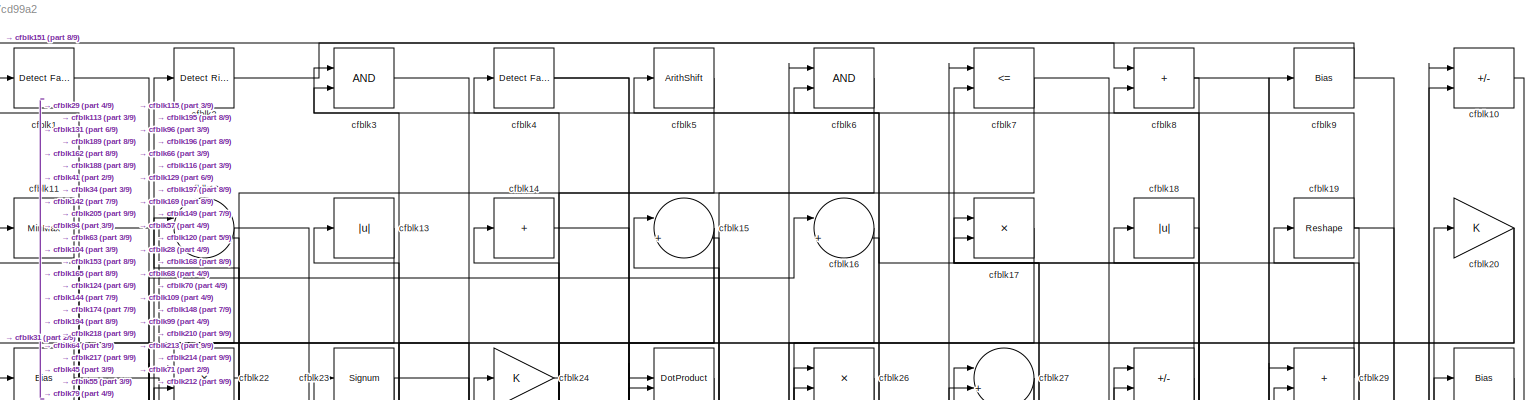
[diagram: root canvas - part 1/9, full width, top band]
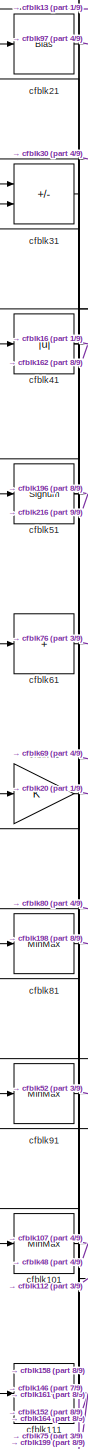
[diagram: root canvas - part 2/9, top left region]
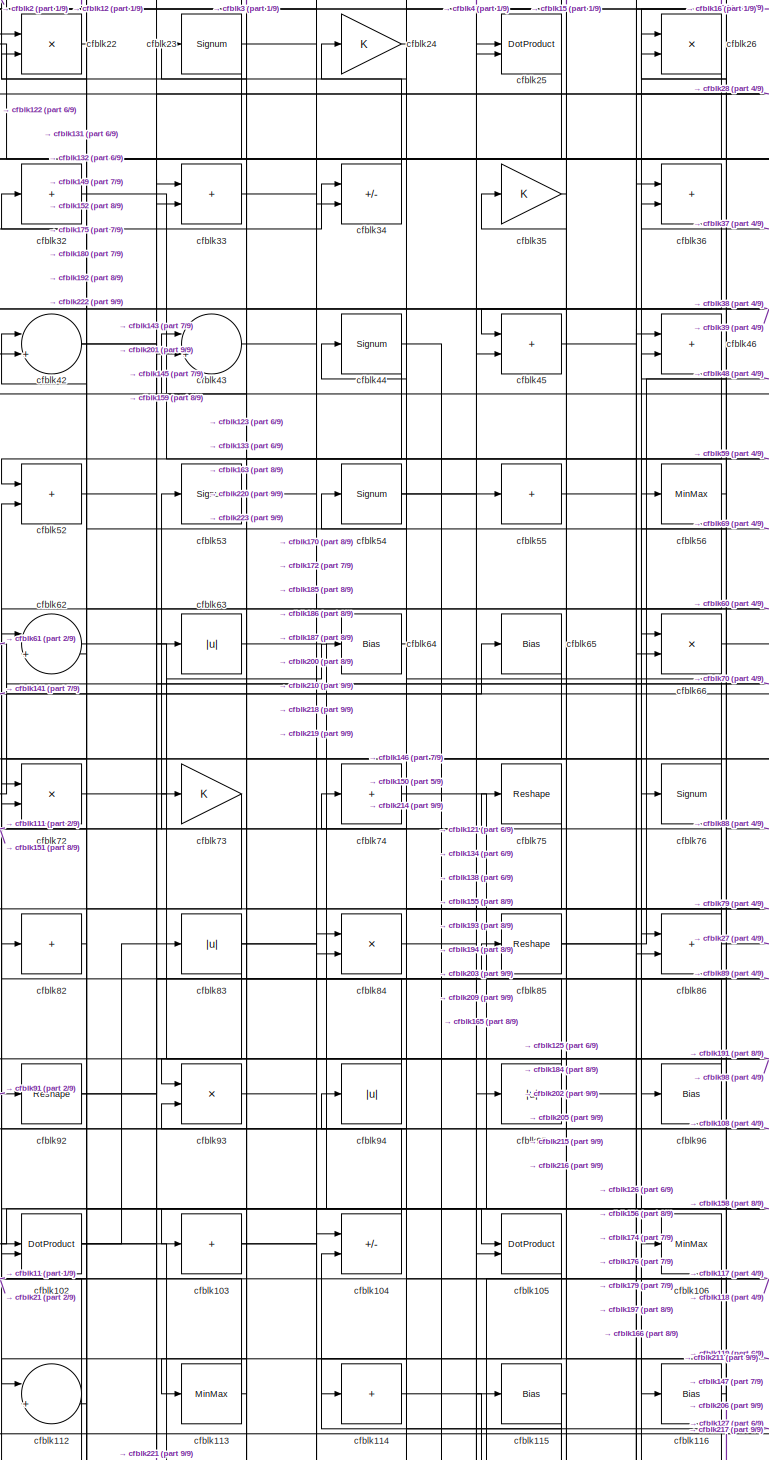
[diagram: root canvas - part 3/9, top center region]
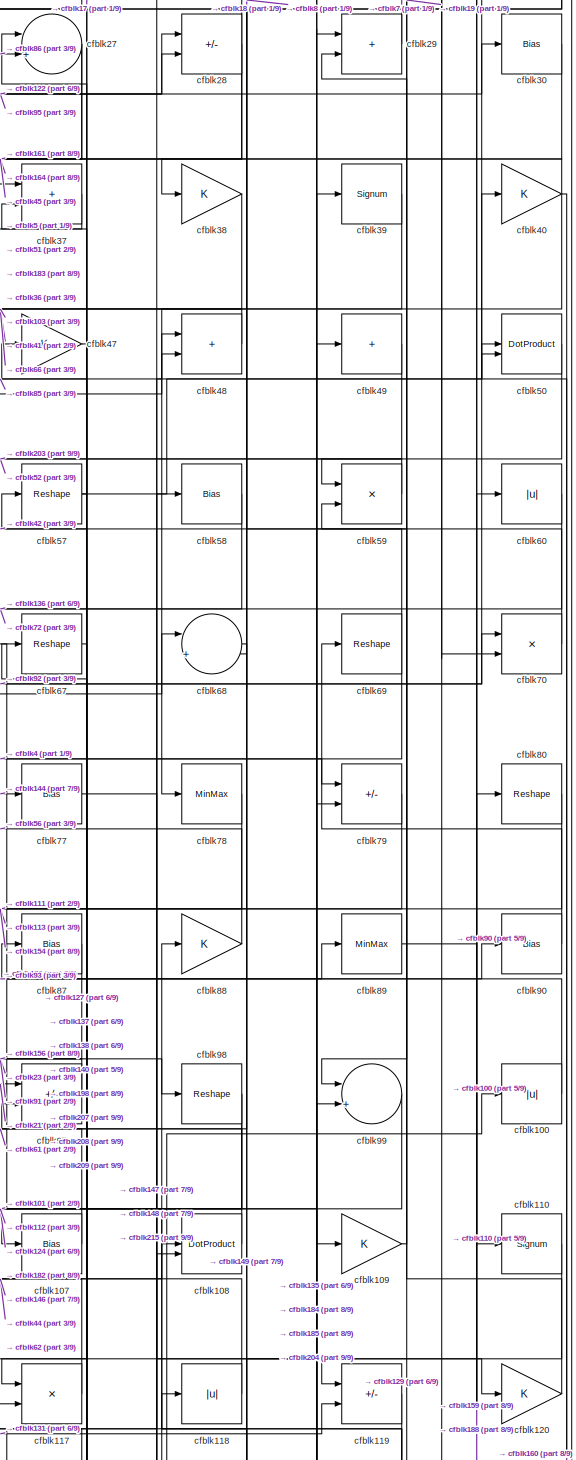
[diagram: root canvas - part 4/9, top right region]
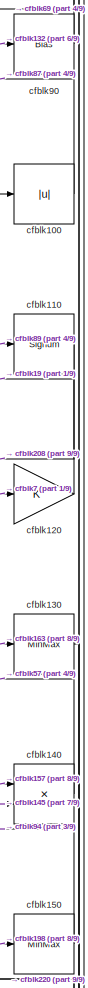
[diagram: root canvas - part 5/9, middle right region]
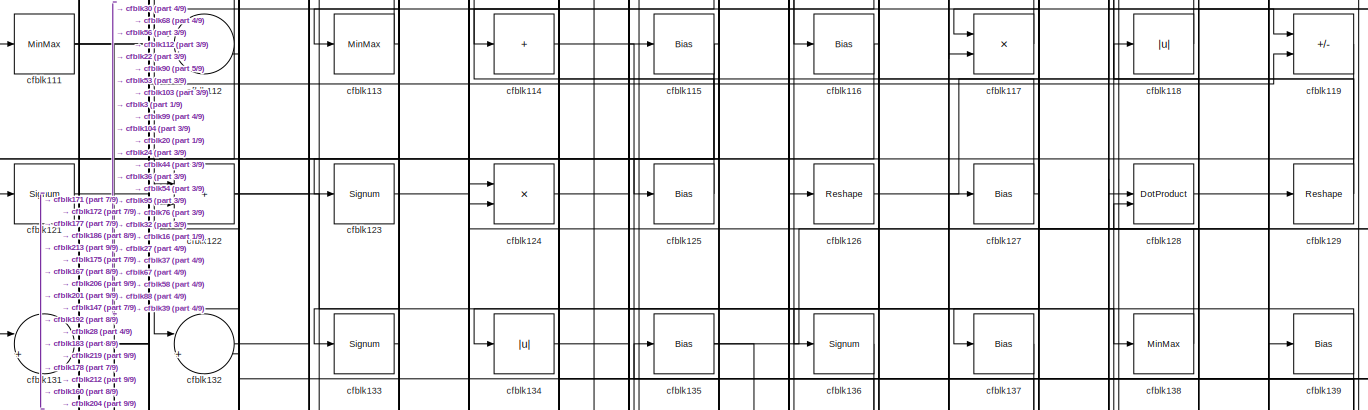
[diagram: root canvas - part 6/9, full width, middle band]
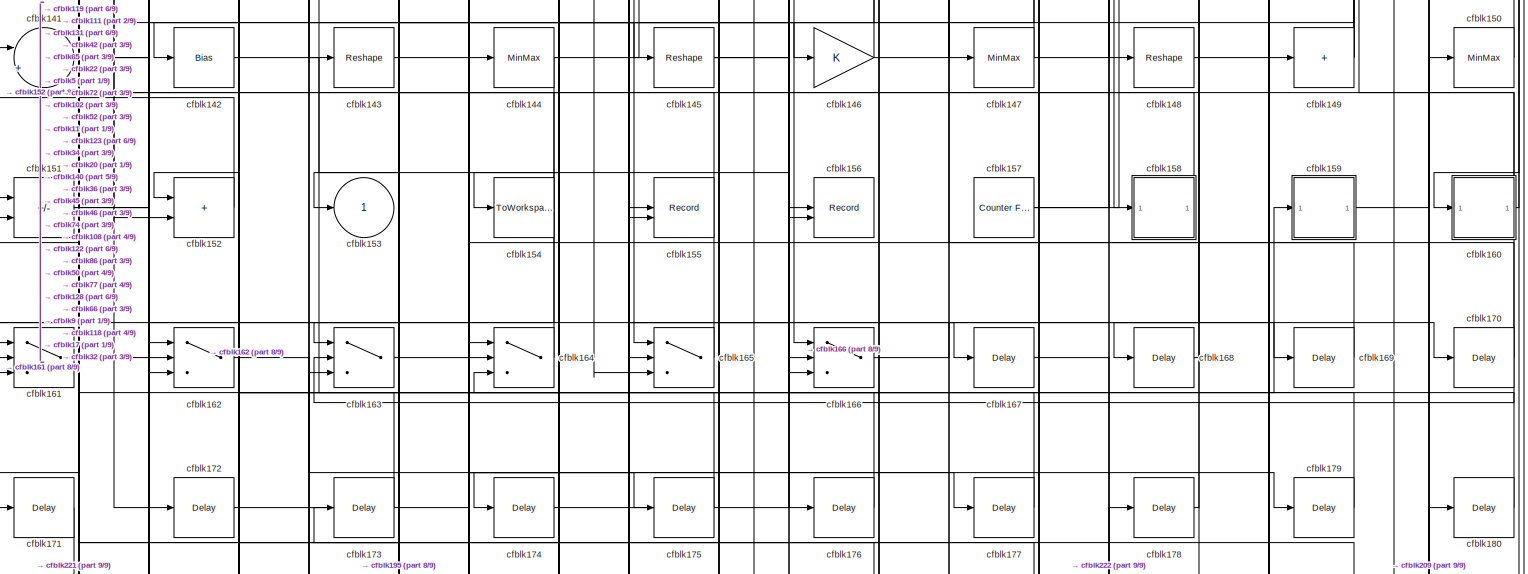
[diagram: root canvas - part 7/9, full width, bottom band]
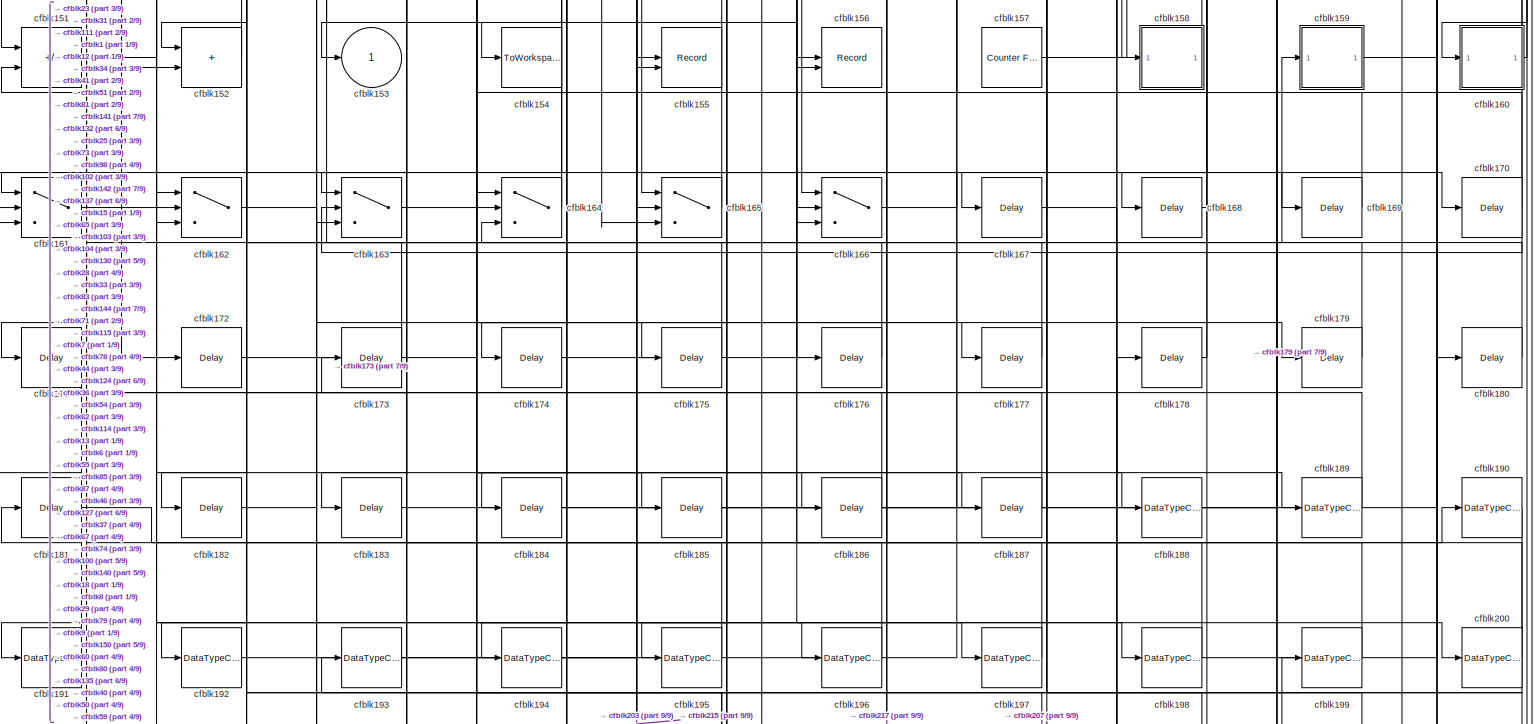
[diagram: root canvas - part 8/9, full width, bottom band]
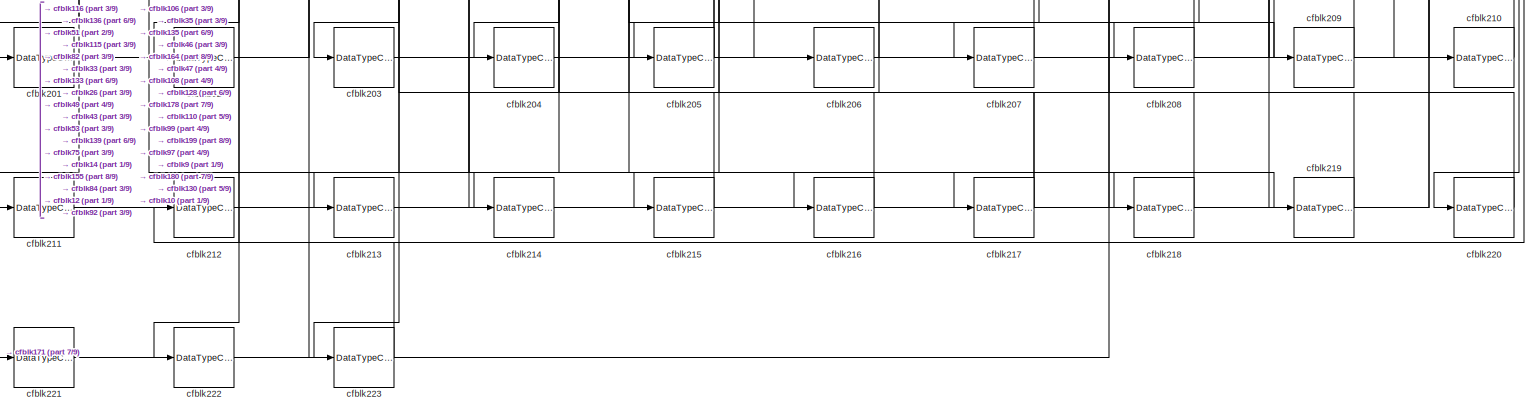
[diagram: root canvas - part 9/9, full width, bottom band]
MODEL slx_30b8d7cd99a2
KIND model
CONFIG AbsTol = auto
CONFIG EnableMultiTasking = off
CONFIG FixedStep = auto
CONFIG MaxStep = auto
CONFIG MinStep = auto
CONFIG RelTol = 1e-3
CONFIG SampleTimeConstraint = Unconstrained
CONFIG SolverName = VariableStepAuto
CONFIG StartTime = 0.0
CONFIG StopTime = 10.0
BLOCK [Reference] cfblk1  REF=hdlsllib/Logic and Bit
Operations/Detect Fall
Nonpositive
  SourceBlock = hdlsllib/Logic and Bit\nOperations/Detect Fall\nNonpositive
  SourceType = Detect Fall Nonpositive
BLOCK [Sum] cfblk10
  IconShape = rectangular
  Inputs = +-
BLOCK [Abs] cfblk100
  SaturateOnIntegerOverflow = off
BLOCK [MinMax] cfblk101
BLOCK [DotProduct] cfblk102
  OutDataTypeStr = Inherit: Inherit via internal rule
BLOCK [Sum] cfblk103
  IconShape = rectangular
  Inputs = +
BLOCK [Sum] cfblk104
  IconShape = rectangular
  Inputs = +-
BLOCK [DotProduct] cfblk105
  OutDataTypeStr = Inherit: Inherit via internal rule
BLOCK [MinMax] cfblk106
BLOCK [Bias] cfblk107
  Bias = 0.0
  SaturateOnIntegerOverflow = off
BLOCK [DotProduct] cfblk108
  OutDataTypeStr = Inherit: Inherit via internal rule
BLOCK [Gain] cfblk109
BLOCK [MinMax] cfblk11
BLOCK [Signum] cfblk110
BLOCK [MinMax] cfblk111
BLOCK [Sum] cfblk112
  Inputs = |++
BLOCK [MinMax] cfblk113
BLOCK [Sum] cfblk114
  IconShape = rectangular
  Inputs = +
BLOCK [Bias] cfblk115
  Bias = 0.0
  SaturateOnIntegerOverflow = off
BLOCK [Bias] cfblk116
  Bias = 0.0
  SaturateOnIntegerOverflow = off
BLOCK [Product] cfblk117
  Inputs = */
  RndMeth = Zero
  SaturateOnIntegerOverflow = on
BLOCK [Abs] cfblk118
  SaturateOnIntegerOverflow = off
BLOCK [Sum] cfblk119
  IconShape = rectangular
  Inputs = +-
BLOCK [Sum] cfblk12
  Inputs = |++
BLOCK [Gain] cfblk120
BLOCK [Signum] cfblk121
BLOCK [Sum] cfblk122
  IconShape = rectangular
BLOCK [Signum] cfblk123
BLOCK [Product] cfblk124
  Inputs = */
  RndMeth = Zero
  SaturateOnIntegerOverflow = on
BLOCK [Bias] cfblk125
  Bias = 0.0
  SaturateOnIntegerOverflow = off
BLOCK [Reshape] cfblk126
BLOCK [Bias] cfblk127
  Bias = 0.0
  SaturateOnIntegerOverflow = off
BLOCK [DotProduct] cfblk128
  OutDataTypeStr = Inherit: Inherit via internal rule
BLOCK [Reshape] cfblk129
BLOCK [Abs] cfblk13
  SaturateOnIntegerOverflow = off
BLOCK [MinMax] cfblk130
BLOCK [Sum] cfblk131
  Inputs = |++
BLOCK [Sum] cfblk132
  Inputs = |++
BLOCK [Signum] cfblk133
BLOCK [Abs] cfblk134
  SaturateOnIntegerOverflow = off
BLOCK [Bias] cfblk135
  Bias = 0.0
  SaturateOnIntegerOverflow = off
BLOCK [Signum] cfblk136
BLOCK [Bias] cfblk137
  Bias = 0.0
  SaturateOnIntegerOverflow = off
BLOCK [MinMax] cfblk138
BLOCK [Bias] cfblk139
  Bias = 0.0
  SaturateOnIntegerOverflow = off
BLOCK [Sum] cfblk14
  IconShape = rectangular
  Inputs = +
BLOCK [Product] cfblk140
  Inputs = */
  RndMeth = Zero
  SaturateOnIntegerOverflow = on
BLOCK [Sum] cfblk141
  Inputs = |++
BLOCK [Bias] cfblk142
  Bias = 0.0
  SaturateOnIntegerOverflow = off
BLOCK [Reshape] cfblk143
BLOCK [MinMax] cfblk144
BLOCK [Reshape] cfblk145
BLOCK [Gain] cfblk146
BLOCK [MinMax] cfblk147
BLOCK [Reshape] cfblk148
BLOCK [Sum] cfblk149
  IconShape = rectangular
  Inputs = +
BLOCK [Sum] cfblk15
  Inputs = |++
BLOCK [MinMax] cfblk150
BLOCK [Sum] cfblk151
  IconShape = rectangular
  Inputs = +-
BLOCK [Sum] cfblk152
  IconShape = rectangular
BLOCK [Outport] cfblk153
  VectorParamsAs1DForOutWhenUnconnected = off
BLOCK [ToWorkspace] cfblk154
  MaxDataPoints = inf
  SampleTime = -1
  SaveFormat = Timeseries
  VariableName = simout
BLOCK [Record] cfblk155
  CompatibilityTag = XY
  FileSettingsInternal = {"entries":[{"content":{"excelSettings":{"content":{},"type":"Streamout.ExcelSettings"}},"type":"Streamout.FileSettingStorage","uuid":""}],"packageUris":["http:\/\/schema.mathworks.com\/mf0\/streamout_blocks\/R2020a"],"version":"1.0"}
  Layout = [1 1]
  SignalsInternal = {"entries":[{"content":{"signals":[{"content":{"blockPath":[],"dimensions":[1],"domain":"","lineColor":"#a2142f","plots":[1],"port":1,"signalID":1573,"signalName":"XY Graph:1"},"type":"RecordBlkView.Signal","uuid":""},{"content":{"blockPath":[],"dimensions":[1],"domain":"","lineColor":"#139fff","plots":[1],"port":2,"signalID":1576,"signalName":"XY Graph:2"},"type":"RecordBlkView.Signal","uuid":""}...<+146ch>
  VisualizationBindings = {"xyplotplugin":{"info":[{"series":[{"bindingParametersList":[{"parameter":"X-Axis","signalID":1573,"signalName":"XY Graph:1"},{"parameter":"Y-Axis","signalID":1576,"signalName":"XY Graph:2"}],"seriesID":20089}],"subplotID":1}]}}
  st = -1
BLOCK [Record] cfblk156
  CompatibilityTag = XY
  FileSettingsInternal = {"entries":[{"content":{"excelSettings":{"content":{},"type":"Streamout.ExcelSettings"}},"type":"Streamout.FileSettingStorage","uuid":""}],"packageUris":["http:\/\/schema.mathworks.com\/mf0\/streamout_blocks\/R2020a"],"version":"1.0"}
  Layout = [1 1]
  SignalsInternal = {"entries":[{"content":{"signals":[{"content":{"blockPath":[],"dimensions":[1],"domain":"","lineColor":"#a2142f","plots":[1],"port":1,"signalID":1581,"signalName":"XY Graph:1"},"type":"RecordBlkView.Signal","uuid":""},{"content":{"blockPath":[],"dimensions":[1],"domain":"","lineColor":"#139fff","plots":[1],"port":2,"signalID":1584,"signalName":"XY Graph:2"},"type":"RecordBlkView.Signal","uuid":""}...<+146ch>
  VisualizationBindings = {"xyplotplugin":{"info":[{"series":[{"bindingParametersList":[{"parameter":"X-Axis","signalID":1581,"signalName":"XY Graph:1"},{"parameter":"Y-Axis","signalID":1584,"signalName":"XY Graph:2"}],"seriesID":3946}],"subplotID":1}]}}
  st = -1
BLOCK [Reference] cfblk157  REF=hdlsllib/Sources/Counter
Free-Running
  SourceBlock = hdlsllib/Sources/Counter\nFree-Running
  SourceType = Counter Free-Running
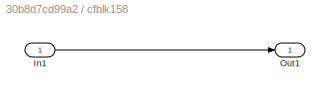
BLOCK [SubSystem] cfblk158
  LibrarySourceBlock = hdlsllib/Ports &\nSubsystems/Subsystem
BLOCK [Inport] cfblk158/In1
BLOCK [Outport] cfblk158/Out1
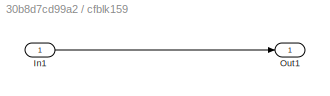
BLOCK [SubSystem] cfblk159
  LibrarySourceBlock = hdlsllib/Ports &\nSubsystems/Subsystem
BLOCK [Inport] cfblk159/In1
BLOCK [Outport] cfblk159/Out1
BLOCK [Sum] cfblk16
  Inputs = |++
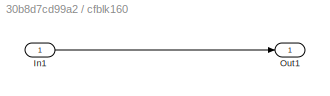
BLOCK [SubSystem] cfblk160
  LibrarySourceBlock = hdlsllib/Ports &\nSubsystems/Subsystem
BLOCK [Inport] cfblk160/In1
BLOCK [Outport] cfblk160/Out1
BLOCK [Switch] cfblk161
  InputSameDT = off
  SaturateOnIntegerOverflow = off
BLOCK [Switch] cfblk162
  InputSameDT = off
  SaturateOnIntegerOverflow = off
BLOCK [Switch] cfblk163
  InputSameDT = off
  SaturateOnIntegerOverflow = off
BLOCK [Switch] cfblk164
  InputSameDT = off
  SaturateOnIntegerOverflow = off
BLOCK [Switch] cfblk165
  InputSameDT = off
  SaturateOnIntegerOverflow = off
BLOCK [Switch] cfblk166
  InputSameDT = off
  SaturateOnIntegerOverflow = off
BLOCK [Delay] cfblk167
  InputPortMap = u0
  SampleTime = 1
BLOCK [Delay] cfblk168
  InputPortMap = u0
  SampleTime = 1
BLOCK [Delay] cfblk169
  InputPortMap = u0
  SampleTime = 1
BLOCK [Product] cfblk17
  Inputs = */
  RndMeth = Zero
  SaturateOnIntegerOverflow = on
BLOCK [Delay] cfblk170
  InputPortMap = u0
  SampleTime = 1
BLOCK [Delay] cfblk171
  InputPortMap = u0
  SampleTime = 1
BLOCK [Delay] cfblk172
  InputPortMap = u0
  SampleTime = 1
BLOCK [Delay] cfblk173
  InputPortMap = u0
  SampleTime = 1
BLOCK [Delay] cfblk174
  InputPortMap = u0
  SampleTime = 1
BLOCK [Delay] cfblk175
  InputPortMap = u0
  SampleTime = 1
BLOCK [Delay] cfblk176
  InputPortMap = u0
  SampleTime = 1
BLOCK [Delay] cfblk177
  InputPortMap = u0
  SampleTime = 1
BLOCK [Delay] cfblk178
  InputPortMap = u0
  SampleTime = 1
BLOCK [Delay] cfblk179
  InputPortMap = u0
  SampleTime = 1
BLOCK [Abs] cfblk18
  SaturateOnIntegerOverflow = off
BLOCK [Delay] cfblk180
  InputPortMap = u0
  SampleTime = 1
BLOCK [Delay] cfblk181
  InputPortMap = u0
  SampleTime = 1
BLOCK [Delay] cfblk182
  InputPortMap = u0
  SampleTime = 1
BLOCK [Delay] cfblk183
  InputPortMap = u0
  SampleTime = 1
BLOCK [Delay] cfblk184
  InputPortMap = u0
  SampleTime = 1
BLOCK [Delay] cfblk185
  InputPortMap = u0
  SampleTime = 1
BLOCK [Delay] cfblk186
  InputPortMap = u0
  SampleTime = 1
BLOCK [Delay] cfblk187
  InputPortMap = u0
  SampleTime = 1
BLOCK [DataTypeConversion] cfblk188
  OutDataTypeStr = uint8
  RndMeth = Floor
  SaturateOnIntegerOverflow = off
BLOCK [DataTypeConversion] cfblk189
  OutDataTypeStr = uint8
  RndMeth = Floor
  SaturateOnIntegerOverflow = off
BLOCK [Reshape] cfblk19
BLOCK [DataTypeConversion] cfblk190
  OutDataTypeStr = uint8
  RndMeth = Floor
  SaturateOnIntegerOverflow = off
BLOCK [DataTypeConversion] cfblk191
  OutDataTypeStr = uint8
  RndMeth = Floor
  SaturateOnIntegerOverflow = off
BLOCK [DataTypeConversion] cfblk192
  OutDataTypeStr = uint8
  RndMeth = Floor
  SaturateOnIntegerOverflow = off
BLOCK [DataTypeConversion] cfblk193
  OutDataTypeStr = uint8
  RndMeth = Floor
  SaturateOnIntegerOverflow = off
BLOCK [DataTypeConversion] cfblk194
  OutDataTypeStr = uint8
  RndMeth = Floor
  SaturateOnIntegerOverflow = off
BLOCK [DataTypeConversion] cfblk195
  OutDataTypeStr = uint8
  RndMeth = Floor
  SaturateOnIntegerOverflow = off
BLOCK [DataTypeConversion] cfblk196
  OutDataTypeStr = uint8
  RndMeth = Floor
  SaturateOnIntegerOverflow = off
BLOCK [DataTypeConversion] cfblk197
  OutDataTypeStr = uint8
  RndMeth = Floor
  SaturateOnIntegerOverflow = off
BLOCK [DataTypeConversion] cfblk198
  RndMeth = Floor
  SaturateOnIntegerOverflow = off
BLOCK [DataTypeConversion] cfblk199
  OutDataTypeStr = uint8
  RndMeth = Floor
  SaturateOnIntegerOverflow = off
BLOCK [Reference] cfblk2  REF=hdlsllib/Logic and Bit
Operations/Detect Rise
Nonnegative
  SourceBlock = hdlsllib/Logic and Bit\nOperations/Detect Rise\nNonnegative
  SourceType = Detect Rise Nonnegative
BLOCK [Gain] cfblk20
BLOCK [DataTypeConversion] cfblk200
  OutDataTypeStr = uint8
  RndMeth = Floor
  SaturateOnIntegerOverflow = off
BLOCK [DataTypeConversion] cfblk201
  OutDataTypeStr = uint8
  RndMeth = Floor
  SaturateOnIntegerOverflow = off
BLOCK [DataTypeConversion] cfblk202
  OutDataTypeStr = uint8
  RndMeth = Floor
  SaturateOnIntegerOverflow = off
BLOCK [DataTypeConversion] cfblk203
  RndMeth = Floor
  SaturateOnIntegerOverflow = off
BLOCK [DataTypeConversion] cfblk204
  OutDataTypeStr = uint8
  RndMeth = Floor
  SaturateOnIntegerOverflow = off
BLOCK [DataTypeConversion] cfblk205
  RndMeth = Floor
  SaturateOnIntegerOverflow = off
BLOCK [DataTypeConversion] cfblk206
  OutDataTypeStr = uint8
  RndMeth = Floor
  SaturateOnIntegerOverflow = off
BLOCK [DataTypeConversion] cfblk207
  RndMeth = Floor
  SaturateOnIntegerOverflow = off
BLOCK [DataTypeConversion] cfblk208
  OutDataTypeStr = uint8
  RndMeth = Floor
  SaturateOnIntegerOverflow = off
BLOCK [DataTypeConversion] cfblk209
  RndMeth = Floor
  SaturateOnIntegerOverflow = off
BLOCK [Bias] cfblk21
  Bias = 0.0
  SaturateOnIntegerOverflow = off
BLOCK [DataTypeConversion] cfblk210
  OutDataTypeStr = uint8
  RndMeth = Floor
  SaturateOnIntegerOverflow = off
BLOCK [DataTypeConversion] cfblk211
  OutDataTypeStr = uint8
  RndMeth = Floor
  SaturateOnIntegerOverflow = off
BLOCK [DataTypeConversion] cfblk212
  OutDataTypeStr = uint8
  RndMeth = Floor
  SaturateOnIntegerOverflow = off
BLOCK [DataTypeConversion] cfblk213
  OutDataTypeStr = uint8
  RndMeth = Floor
  SaturateOnIntegerOverflow = off
BLOCK [DataTypeConversion] cfblk214
  OutDataTypeStr = uint8
  RndMeth = Floor
  SaturateOnIntegerOverflow = off
BLOCK [DataTypeConversion] cfblk215
  RndMeth = Floor
  SaturateOnIntegerOverflow = off
BLOCK [DataTypeConversion] cfblk216
  OutDataTypeStr = uint8
  RndMeth = Floor
  SaturateOnIntegerOverflow = off
BLOCK [DataTypeConversion] cfblk217
  RndMeth = Floor
  SaturateOnIntegerOverflow = off
BLOCK [DataTypeConversion] cfblk218
  OutDataTypeStr = uint8
  RndMeth = Floor
  SaturateOnIntegerOverflow = off
BLOCK [DataTypeConversion] cfblk219
  OutDataTypeStr = uint8
  RndMeth = Floor
  SaturateOnIntegerOverflow = off
BLOCK [Product] cfblk22
  Inputs = */
  RndMeth = Zero
  SaturateOnIntegerOverflow = on
BLOCK [DataTypeConversion] cfblk220
  OutDataTypeStr = uint8
  RndMeth = Floor
  SaturateOnIntegerOverflow = off
BLOCK [DataTypeConversion] cfblk221
  OutDataTypeStr = uint8
  RndMeth = Floor
  SaturateOnIntegerOverflow = off
BLOCK [DataTypeConversion] cfblk222
  OutDataTypeStr = uint8
  RndMeth = Floor
  SaturateOnIntegerOverflow = off
BLOCK [DataTypeConversion] cfblk223
  OutDataTypeStr = uint8
  RndMeth = Floor
  SaturateOnIntegerOverflow = off
BLOCK [Signum] cfblk23
BLOCK [Gain] cfblk24
BLOCK [DotProduct] cfblk25
  OutDataTypeStr = Inherit: Inherit via internal rule
BLOCK [Product] cfblk26
  Inputs = */
  RndMeth = Zero
  SaturateOnIntegerOverflow = on
BLOCK [Sum] cfblk27
  Inputs = |++
BLOCK [Sum] cfblk28
  IconShape = rectangular
  Inputs = +-
BLOCK [Sum] cfblk29
  IconShape = rectangular
BLOCK [Logic] cfblk3
  AllPortsSameDT = off
  OutDataTypeStr = boolean
BLOCK [Bias] cfblk30
  Bias = 0.0
  SaturateOnIntegerOverflow = off
BLOCK [Sum] cfblk31
  IconShape = rectangular
  Inputs = +-
BLOCK [Sum] cfblk32
  IconShape = rectangular
  Inputs = +
BLOCK [Sum] cfblk33
  IconShape = rectangular
BLOCK [Sum] cfblk34
  IconShape = rectangular
  Inputs = +-
BLOCK [Gain] cfblk35
BLOCK [Sum] cfblk36
  IconShape = rectangular
BLOCK [Sum] cfblk37
  IconShape = rectangular
BLOCK [Gain] cfblk38
BLOCK [Signum] cfblk39
BLOCK [Reference] cfblk4  REF=hdlsllib/Logic and Bit
Operations/Detect Fall
Negative
  SourceBlock = hdlsllib/Logic and Bit\nOperations/Detect Fall\nNegative
  SourceType = Detect Fall Negative
BLOCK [Gain] cfblk40
BLOCK [Abs] cfblk41
  SaturateOnIntegerOverflow = off
BLOCK [Sum] cfblk42
  Inputs = |++
BLOCK [Sum] cfblk43
  Inputs = |++
BLOCK [Signum] cfblk44
BLOCK [Sum] cfblk45
  IconShape = rectangular
BLOCK [Sum] cfblk46
  IconShape = rectangular
BLOCK [Gain] cfblk47
BLOCK [Sum] cfblk48
  IconShape = rectangular
BLOCK [Sum] cfblk49
  IconShape = rectangular
  Inputs = +
BLOCK [ArithShift] cfblk5
  BitShiftNumber = 8
  InputPortMap = u0
BLOCK [DotProduct] cfblk50
  OutDataTypeStr = Inherit: Inherit via internal rule
BLOCK [Signum] cfblk51
BLOCK [Sum] cfblk52
  IconShape = rectangular
BLOCK [Signum] cfblk53
BLOCK [Signum] cfblk54
BLOCK [Sum] cfblk55
  IconShape = rectangular
  Inputs = +
BLOCK [MinMax] cfblk56
BLOCK [Reshape] cfblk57
BLOCK [Bias] cfblk58
  Bias = 0.0
  SaturateOnIntegerOverflow = off
BLOCK [Product] cfblk59
  Inputs = */
  RndMeth = Zero
  SaturateOnIntegerOverflow = on
BLOCK [Logic] cfblk6
  AllPortsSameDT = off
  OutDataTypeStr = boolean
BLOCK [Abs] cfblk60
  SaturateOnIntegerOverflow = off
BLOCK [Sum] cfblk61
  IconShape = rectangular
  Inputs = +
BLOCK [Sum] cfblk62
  Inputs = |++
BLOCK [Abs] cfblk63
  SaturateOnIntegerOverflow = off
BLOCK [Bias] cfblk64
  Bias = 0.0
  SaturateOnIntegerOverflow = off
BLOCK [Bias] cfblk65
  Bias = 0.0
  SaturateOnIntegerOverflow = off
BLOCK [Product] cfblk66
  Inputs = */
  RndMeth = Zero
  SaturateOnIntegerOverflow = on
BLOCK [Reshape] cfblk67
BLOCK [Sum] cfblk68
  Inputs = |++
BLOCK [Reshape] cfblk69
BLOCK [RelationalOperator] cfblk7
  InputSameDT = off
  Operator = <=
  OutDataTypeStr = boolean
BLOCK [Product] cfblk70
  Inputs = */
  RndMeth = Zero
  SaturateOnIntegerOverflow = on
BLOCK [Gain] cfblk71
BLOCK [Product] cfblk72
  Inputs = */
  RndMeth = Zero
  SaturateOnIntegerOverflow = on
BLOCK [Gain] cfblk73
BLOCK [Sum] cfblk74
  IconShape = rectangular
  Inputs = +
BLOCK [Reshape] cfblk75
BLOCK [Signum] cfblk76
BLOCK [Bias] cfblk77
  Bias = 0.0
  SaturateOnIntegerOverflow = off
BLOCK [MinMax] cfblk78
BLOCK [Sum] cfblk79
  IconShape = rectangular
  Inputs = +-
BLOCK [Sum] cfblk8
  IconShape = rectangular
BLOCK [Reshape] cfblk80
BLOCK [MinMax] cfblk81
BLOCK [Sum] cfblk82
  IconShape = rectangular
  Inputs = +
BLOCK [Abs] cfblk83
  SaturateOnIntegerOverflow = off
BLOCK [Product] cfblk84
  Inputs = */
  RndMeth = Zero
  SaturateOnIntegerOverflow = on
BLOCK [Reshape] cfblk85
BLOCK [Sum] cfblk86
  IconShape = rectangular
BLOCK [Bias] cfblk87
  Bias = 0.0
  SaturateOnIntegerOverflow = off
BLOCK [Gain] cfblk88
BLOCK [MinMax] cfblk89
BLOCK [Bias] cfblk9
  Bias = 0.0
  SaturateOnIntegerOverflow = off
BLOCK [Bias] cfblk90
  Bias = 0.0
  SaturateOnIntegerOverflow = off
BLOCK [MinMax] cfblk91
BLOCK [Reshape] cfblk92
BLOCK [Product] cfblk93
  Inputs = */
  RndMeth = Zero
  SaturateOnIntegerOverflow = on
BLOCK [Abs] cfblk94
  SaturateOnIntegerOverflow = off
BLOCK [Abs] cfblk95
  SaturateOnIntegerOverflow = off
BLOCK [Bias] cfblk96
  Bias = 0.0
  SaturateOnIntegerOverflow = off
BLOCK [Sum] cfblk97
  IconShape = rectangular
  Inputs = +-
BLOCK [Reshape] cfblk98
BLOCK [Sum] cfblk99
  Inputs = |++
LINE cfblk100:1 -> cfblk87:1
NET cfblk101:1 -> cfblk107:1, cfblk48:2
NET cfblk102:1 -> cfblk145:1, cfblk159:1, cfblk83:1
NET cfblk103:1 -> cfblk119:1, cfblk185:1
NET cfblk104:1 -> cfblk102:1, cfblk3:1
LINE cfblk105:1 -> cfblk112:1
LINE cfblk106:1 -> cfblk205:1
LINE cfblk107:1 -> cfblk61:1
LINE cfblk108:1 -> cfblk62:2
LINE cfblk109:1 -> cfblk29:2
LINE cfblk10:1 -> cfblk212:1
LINE cfblk110:1 -> cfblk208:1
NET cfblk111:1 -> cfblk146:1, cfblk152:2, cfblk75:1
NET cfblk112:1 -> cfblk131:1, cfblk21:1
NET cfblk113:1 -> cfblk11:1, cfblk93:2
LINE cfblk114:1 -> cfblk165:1
NET cfblk115:1 -> cfblk15:2, cfblk184:1, cfblk202:1
NET cfblk116:1 -> cfblk211:1, cfblk26:1
LINE cfblk117:1 -> cfblk62:1
LINE cfblk118:1 -> cfblk44:1
LINE cfblk119:1 -> cfblk171:1
LINE cfblk11:1 -> cfblk144:1
LINE cfblk120:1 -> cfblk19:1
LINE cfblk121:1 -> cfblk22:1
NET cfblk122:1 -> cfblk147:1, cfblk28:1
LINE cfblk123:1 -> cfblk175:1
LINE cfblk124:1 -> cfblk167:1
LINE cfblk125:1 -> cfblk104:2
LINE cfblk126:1 -> cfblk58:1
NET cfblk127:1 -> cfblk24:1, cfblk37:2
LINE cfblk128:1 -> cfblk129:1
NET cfblk129:1 -> cfblk16:2, cfblk88:1
NET cfblk12:1 -> cfblk162:3, cfblk63:1
LINE cfblk130:1 -> cfblk220:1
NET cfblk131:1 -> cfblk119:2, cfblk172:1, cfblk30:1, cfblk68:1
LINE cfblk132:1 -> cfblk90:1
LINE cfblk133:1 -> cfblk213:1
LINE cfblk134:1 -> cfblk95:1
NET cfblk135:1 -> cfblk206:1, cfblk39:1
LINE cfblk136:1 -> cfblk201:1
LINE cfblk137:1 -> cfblk183:1
LINE cfblk138:1 -> cfblk27:1
NET cfblk139:1 -> cfblk134:1, cfblk204:1
LINE cfblk13:1 -> cfblk31:2
LINE cfblk140:1 -> cfblk57:1
NET cfblk141:1 -> cfblk42:2, cfblk65:1
LINE cfblk142:1 -> cfblk166:2
LINE cfblk143:1 -> cfblk177:1
NET cfblk144:1 -> cfblk161:3, cfblk77:1
NET cfblk145:1 -> cfblk140:2, cfblk46:1
NET cfblk146:1 -> cfblk108:1, cfblk74:1
NET cfblk147:1 -> cfblk50:2, cfblk86:1
LINE cfblk148:1 -> cfblk9:1
NET cfblk149:1 -> cfblk118:1, cfblk17:1, cfblk32:1
LINE cfblk14:1 -> cfblk217:1
LINE cfblk150:1 -> cfblk94:1
NET cfblk151:1 -> cfblk34:1, cfblk73:1
LINE cfblk152:1 -> cfblk141:1
NET cfblk157:1 -> cfblk100:1, cfblk140:1
LINE cfblk158/In1:1 -> cfblk158/Out1:1
LINE cfblk158:1 -> cfblk31:1
LINE cfblk159/In1:1 -> cfblk159/Out1:1
LINE cfblk159:1 -> cfblk80:1
NET cfblk15:1 -> cfblk153:1, cfblk45:2
LINE cfblk160/In1:1 -> cfblk160/Out1:1
NET cfblk160:1 -> cfblk135:1, cfblk163:2, cfblk50:1, cfblk59:2
LINE cfblk161:1 -> cfblk169:1
LINE cfblk162:1 -> cfblk179:1
LINE cfblk163:1 -> cfblk130:1
LINE cfblk164:1 -> cfblk71:1
LINE cfblk165:1 -> cfblk13:1
LINE cfblk166:1 -> cfblk170:1
LINE cfblk167:1 -> cfblk189:1
LINE cfblk168:1 -> cfblk8:2
LINE cfblk169:1 -> cfblk7:1
LINE cfblk16:1 -> cfblk66:2
LINE cfblk170:1 -> cfblk104:1
LINE cfblk171:1 -> cfblk221:1
LINE cfblk172:1 -> cfblk34:2
LINE cfblk173:1 -> cfblk141:2
LINE cfblk174:1 -> cfblk86:2
LINE cfblk175:1 -> cfblk22:2
LINE cfblk176:1 -> cfblk72:2
LINE cfblk177:1 -> cfblk122:2
LINE cfblk178:1 -> cfblk128:2
LINE cfblk179:1 -> cfblk36:1
LINE cfblk17:1 -> cfblk116:1
LINE cfblk180:1 -> cfblk102:2
LINE cfblk181:1 -> cfblk190:1
LINE cfblk182:1 -> cfblk163:3
LINE cfblk183:1 -> cfblk37:1
LINE cfblk184:1 -> cfblk29:1
LINE cfblk185:1 -> cfblk79:2
LINE cfblk186:1 -> cfblk132:2
LINE cfblk187:1 -> cfblk151:2
LINE cfblk188:1 -> cfblk60:1
LINE cfblk189:1 -> cfblk1:1
LINE cfblk18:1 -> cfblk168:1
LINE cfblk190:1 -> cfblk193:1
LINE cfblk191:1 -> cfblk181:1
LINE cfblk192:1 -> cfblk127:1
LINE cfblk193:1 -> cfblk25:1
LINE cfblk194:1 -> cfblk25:2
LINE cfblk195:1 -> cfblk173:1
LINE cfblk196:1 -> cfblk6:1
LINE cfblk197:1 -> cfblk6:2
NET cfblk198:1 -> cfblk150:1, cfblk67:1
LINE cfblk199:1 -> cfblk81:1
NET cfblk19:1 -> cfblk3:2, cfblk70:2, cfblk99:1
LINE cfblk1:1 -> cfblk188:1
LINE cfblk200:1 -> cfblk162:2
LINE cfblk201:1 -> cfblk33:1
LINE cfblk202:1 -> cfblk33:2
NET cfblk203:1 -> cfblk115:1, cfblk199:1
LINE cfblk204:1 -> cfblk49:1
NET cfblk205:1 -> cfblk12:2, cfblk92:1
LINE cfblk206:1 -> cfblk106:1
NET cfblk207:1 -> cfblk164:1, cfblk99:2
LINE cfblk208:1 -> cfblk47:1
NET cfblk209:1 -> cfblk180:1, cfblk97:2
NET cfblk20:1 -> cfblk131:2, cfblk174:1
LINE cfblk210:1 -> cfblk84:1
LINE cfblk211:1 -> cfblk84:2
LINE cfblk212:1 -> cfblk139:1
LINE cfblk213:1 -> cfblk10:1
LINE cfblk214:1 -> cfblk10:2
NET cfblk215:1 -> cfblk108:2, cfblk155:1
LINE cfblk216:1 -> cfblk35:1
NET cfblk217:1 -> cfblk164:3, cfblk46:2
LINE cfblk218:1 -> cfblk14:1
LINE cfblk219:1 -> cfblk128:1
LINE cfblk21:1 -> cfblk97:1
LINE cfblk220:1 -> cfblk43:1
LINE cfblk221:1 -> cfblk43:2
LINE cfblk222:1 -> cfblk178:1
LINE cfblk223:1 -> cfblk82:1
LINE cfblk22:1 -> cfblk132:1
NET cfblk23:1 -> cfblk191:1, cfblk98:1
LINE cfblk24:1 -> cfblk114:1
LINE cfblk25:1 -> cfblk192:1
LINE cfblk26:1 -> cfblk223:1
NET cfblk27:1 -> cfblk117:2, cfblk45:1
NET cfblk28:1 -> cfblk161:2, cfblk164:2, cfblk5:1
LINE cfblk29:1 -> cfblk7:2
LINE cfblk2:1 -> cfblk8:1
LINE cfblk30:1 -> cfblk51:1
LINE cfblk31:1 -> cfblk161:1
LINE cfblk32:1 -> cfblk126:1
LINE cfblk33:1 -> cfblk200:1
LINE cfblk34:1 -> cfblk2:1
LINE cfblk35:1 -> cfblk215:1
NET cfblk36:1 -> cfblk121:1, cfblk155:2
LINE cfblk37:1 -> cfblk36:2
LINE cfblk38:1 -> cfblk66:1
LINE cfblk39:1 -> cfblk103:1
LINE cfblk3:1 -> cfblk124:1
NET cfblk40:1 -> cfblk160:1, cfblk38:1, cfblk78:1
NET cfblk41:1 -> cfblk162:1, cfblk16:1
NET cfblk42:1 -> cfblk105:2, cfblk96:1
LINE cfblk43:1 -> cfblk219:1
NET cfblk44:1 -> cfblk133:1, cfblk165:3
LINE cfblk45:1 -> cfblk176:1
LINE cfblk46:1 -> cfblk166:1
LINE cfblk47:1 -> cfblk207:1
LINE cfblk48:1 -> cfblk41:1
LINE cfblk49:1 -> cfblk203:1
NET cfblk4:1 -> cfblk55:1, cfblk79:1
LINE cfblk50:1 -> cfblk59:1
NET cfblk51:1 -> cfblk196:1, cfblk216:1
LINE cfblk52:1 -> cfblk143:1
NET cfblk53:1 -> cfblk123:1, cfblk218:1
NET cfblk54:1 -> cfblk138:1, cfblk166:3
LINE cfblk55:1 -> cfblk156:1
NET cfblk56:1 -> cfblk122:1, cfblk26:2
NET cfblk57:1 -> cfblk17:2, cfblk40:1
LINE cfblk58:1 -> cfblk136:1
LINE cfblk59:1 -> cfblk52:1
LINE cfblk5:1 -> cfblk142:1
LINE cfblk60:1 -> cfblk72:1
LINE cfblk61:1 -> cfblk76:1
LINE cfblk62:1 -> cfblk165:2
LINE cfblk63:1 -> cfblk105:1
LINE cfblk64:1 -> cfblk4:1
LINE cfblk65:1 -> cfblk163:1
LINE cfblk66:1 -> cfblk149:1
LINE cfblk67:1 -> cfblk137:1
LINE cfblk68:1 -> cfblk117:1
NET cfblk69:1 -> cfblk101:1, cfblk42:1
LINE cfblk6:1 -> cfblk195:1
LINE cfblk70:1 -> cfblk18:1
LINE cfblk71:1 -> cfblk20:1
LINE cfblk72:1 -> cfblk64:1
LINE cfblk73:1 -> cfblk152:1
LINE cfblk74:1 -> cfblk158:1
LINE cfblk75:1 -> cfblk214:1
NET cfblk76:1 -> cfblk125:1, cfblk54:1
LINE cfblk77:1 -> cfblk148:1
LINE cfblk78:1 -> cfblk154:1
LINE cfblk79:1 -> cfblk113:1
NET cfblk7:1 -> cfblk120:1, cfblk194:1
LINE cfblk80:1 -> cfblk111:1
LINE cfblk81:1 -> cfblk198:1
LINE cfblk82:1 -> cfblk222:1
NET cfblk83:1 -> cfblk186:1, cfblk187:1, cfblk93:1
LINE cfblk84:1 -> cfblk209:1
NET cfblk85:1 -> cfblk197:1, cfblk48:1
NET cfblk86:1 -> cfblk27:2, cfblk53:1
LINE cfblk87:1 -> cfblk156:2
LINE cfblk88:1 -> cfblk56:1
LINE cfblk89:1 -> cfblk110:1
NET cfblk8:1 -> cfblk109:1, cfblk68:2
LINE cfblk90:1 -> cfblk69:1
LINE cfblk91:1 -> cfblk52:2
NET cfblk92:1 -> cfblk70:1, cfblk85:1
LINE cfblk93:1 -> cfblk89:1
LINE cfblk94:1 -> cfblk12:1
NET cfblk95:1 -> cfblk23:1, cfblk28:2
LINE cfblk96:1 -> cfblk15:1
LINE cfblk97:1 -> cfblk91:1
NET cfblk98:1 -> cfblk112:2, cfblk182:1
LINE cfblk99:1 -> cfblk124:2
NET cfblk9:1 -> cfblk151:1, cfblk210:1
note: NET lines group one-source signal fan-out (src -> all destinations, sorted); 1:1 wires keep LINE
